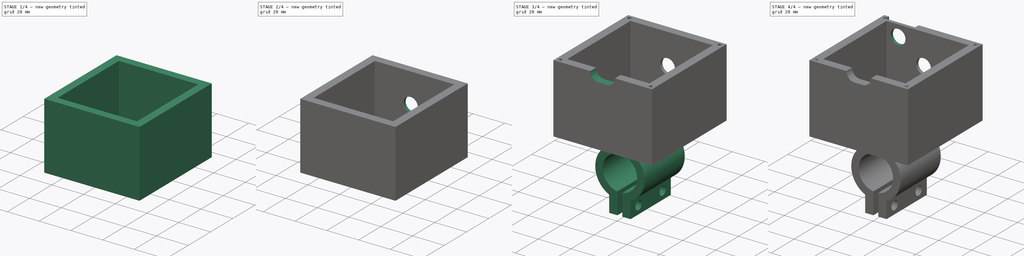
[diagram: build sequence overview — one tinted view per stage of 4, left to right]
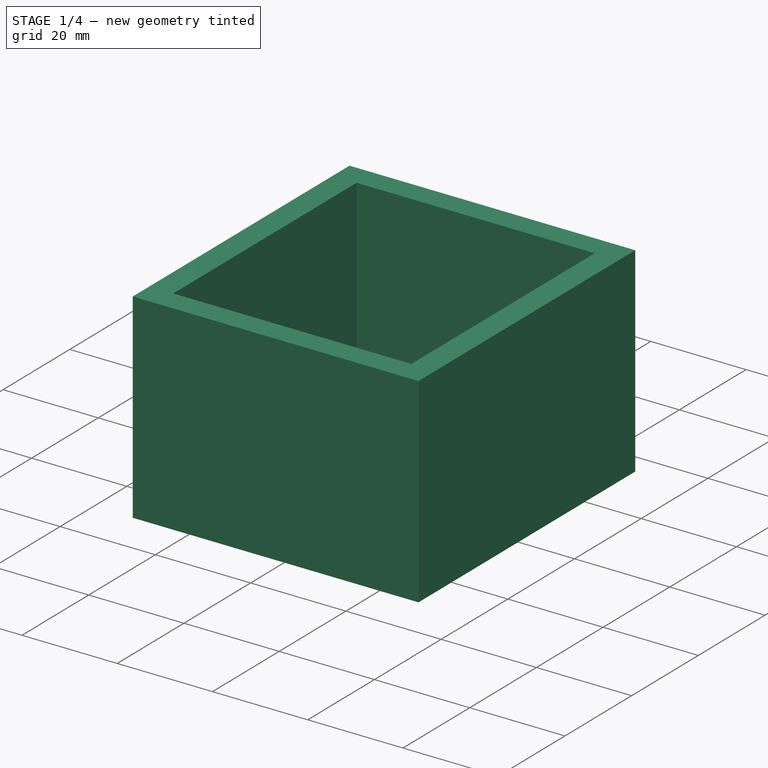
[diagram: stage 1 of 4 — iso view after this stage's code; geometry added in this stage tinted green]
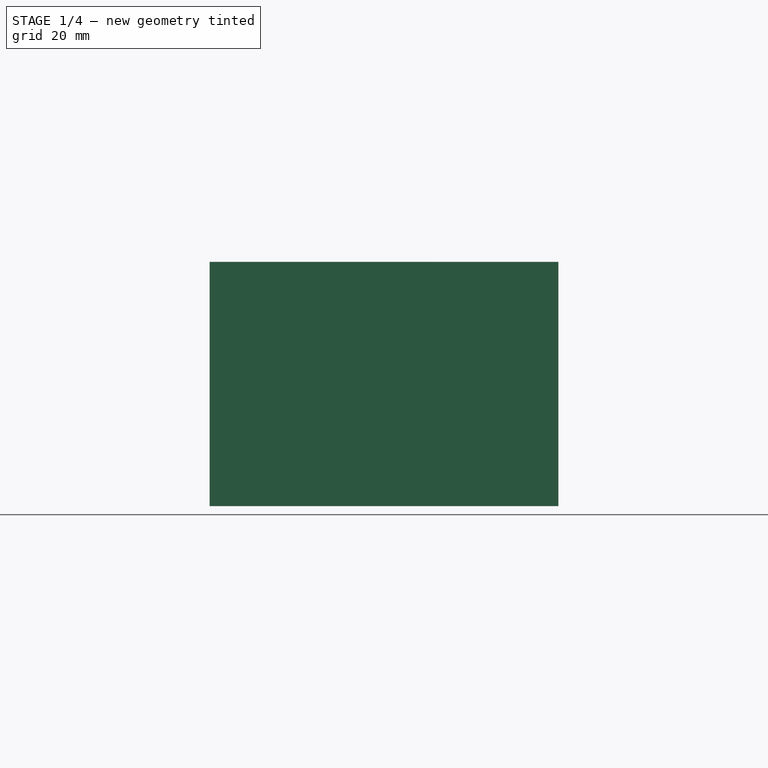
[diagram: stage 1 of 4 — front view after this stage's code; geometry added in this stage tinted green]
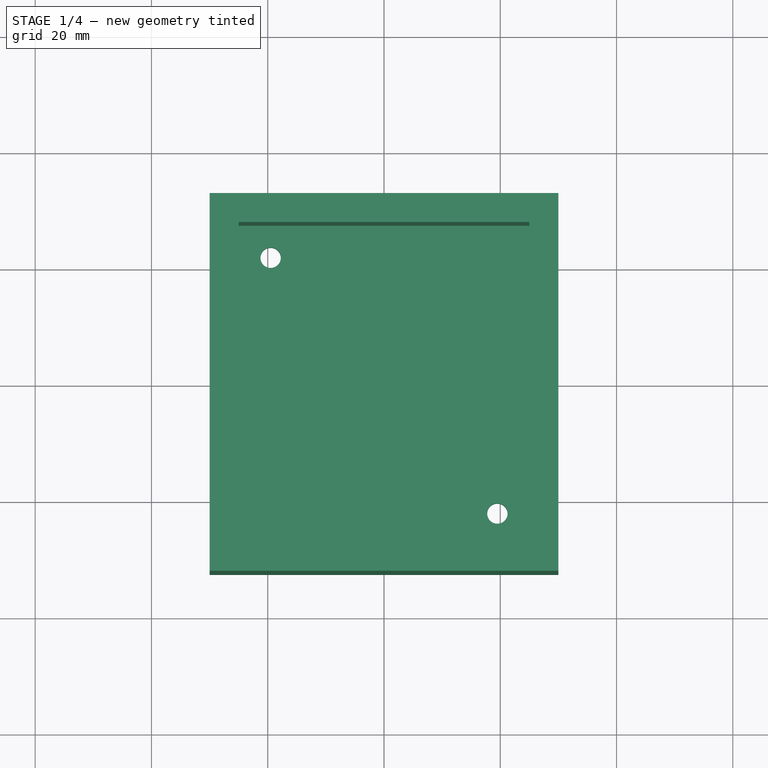
[diagram: stage 1 of 4 — top view after this stage's code; geometry added in this stage tinted green]
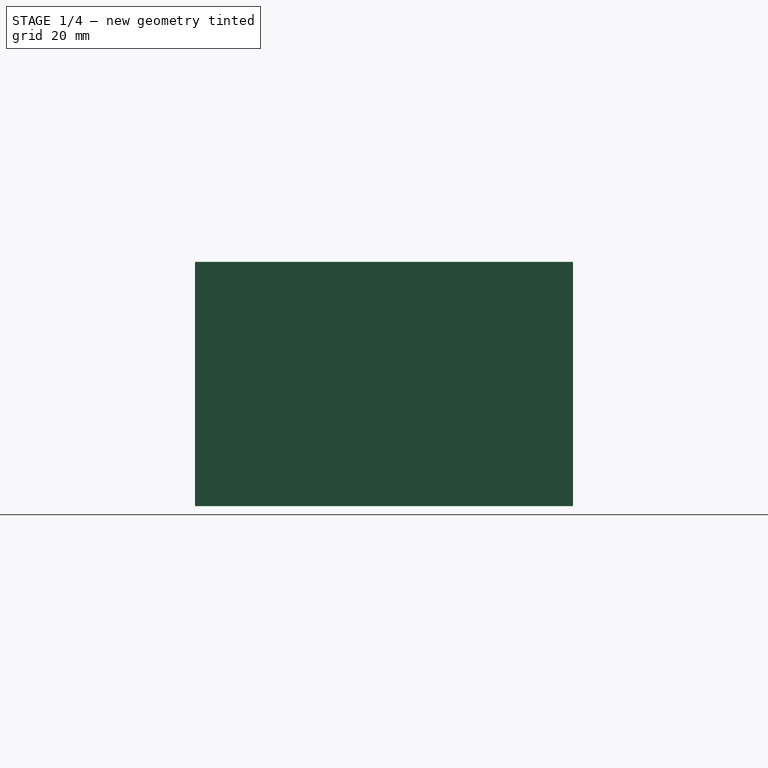
[diagram: stage 1 of 4 — right view after this stage's code; geometry added in this stage tinted green]
FCSTD DOCUMENT  (FreeCAD 0.19R)
Label: box
License: All rights reserved
LicenseURL: http://en.wikipedia.org/wiki/All_rights_reserved
objects: Sketcher::SketchObject×13, PartDesign::Pocket×10, PartDesign::CoordinateSystem×4, PartDesign::Pad×3, PartDesign::Plane×1, PartDesign::Body×1
note: 45 computed .brp shape members not serialized (recipe doc carries the construction recipe); baked Part::Feature solids carry a one-line shape summary decoded from their .brp

FEATURE [Sketcher::SketchObject] Sketch
  FullyConstrained = true
  MapMode = 5
  Support = -> [XY_Plane]
  sketch-geometry (4):
    g0: LineSegment StartX=-30 StartY=32.5 StartZ=0 EndX=30 EndY=32.5 EndZ=0
    g1: LineSegment StartX=30 StartY=32.5 StartZ=0 EndX=30 EndY=-32.5 EndZ=0
    g2: LineSegment StartX=30 StartY=-32.5 StartZ=0 EndX=-30 EndY=-32.5 EndZ=0
    g3: LineSegment StartX=-30 StartY=-32.5 StartZ=0 EndX=-30 EndY=32.5 EndZ=0
  constraints (10):
    c: Coincident(g0,g1)
    c: Coincident(g1,g2)
    c: Coincident(g2,g3)
    c: Coincident(g3,g0)
    c: Horizontal(g0)
    c: Vertical(g3)
    c: DistanceX(g0,g0) = 60
    c: DistanceY(g1,g1) = 65
    c: Symmetric(g1,g0,g-1)
    c: Symmetric(g2,g1,g-2)
FEATURE [PartDesign::Pad] Pad
  Direction = (1,1,1)
  Length = 42
  Length2 = 100
  Profile = -> Sketch
  Type = 0
FEATURE [Sketcher::SketchObject] Sketch001
  ExternalGeometry = -> [Pad]
  FullyConstrained = true
  MapMode = 5
  Placement = pos=(0,0,42) rot=(0,0,1;0rad)
  Support = -> [Pad]
  sketch-geometry (4):
    g0: LineSegment StartX=-25 StartY=27.5 StartZ=0 EndX=25 EndY=27.5 EndZ=0
    g1: LineSegment StartX=25 StartY=27.5 StartZ=0 EndX=25 EndY=-27.5 EndZ=0
    g2: LineSegment StartX=25 StartY=-27.5 StartZ=0 EndX=-25 EndY=-27.5 EndZ=0
    g3: LineSegment StartX=-25 StartY=-27.5 StartZ=0 EndX=-25 EndY=27.5 EndZ=0
  constraints (12):
    c: Coincident(g0,g1)
    c: Coincident(g1,g2)
    c: Coincident(g2,g3)
    c: Coincident(g3,g0)
    c: Horizontal(g0)
    c: Horizontal(g2)
    c: Vertical(g1)
    c: Vertical(g3)
    c: DistanceX(g1,g-4) = 5
    c: DistanceY(g-4,g1) = 5
    c: DistanceY(g0,g-4) = 5
    c: DistanceX(g-3,g2) = 5
FEATURE [PartDesign::Pocket] Pocket
  BaseFeature = -> Pad
  Length = 37
  Length2 = 100
  Profile = -> Sketch001
  Type = 0
FEATURE [PartDesign::CoordinateSystem] LCS_1
  AttacherType = Attacher::AttachEngine3D
  MapMode = 5
  Placement = pos=(0,0,0) rot=(1,0,0;3.14159rad)
  Support = -> [Pocket]
FEATURE [Sketcher::SketchObject] Sketch002
  FullyConstrained = true
  MapMode = 5
  Placement = pos=(0,0,0) rot=(1,0,0;3.14159rad)
  Support = -> [Pocket]
  sketch-geometry (2):
    g0: Circle CenterX=-19.5 CenterY=-22 CenterZ=0 NormalX=0 NormalY=0 NormalZ=1 AngleXU=0 Radius=1.75
    g1: Circle CenterX=19.5 CenterY=22 CenterZ=0 NormalX=0 NormalY=0 NormalZ=1 AngleXU=0 Radius=1.75
  constraints (6):
    c: Equal(g1,g0)
    c: Diameter(g1) = 3.5
    c: DistanceX(g0,g1) = 39
    c: DistanceY(g0,g1) = 44
    c: DistanceY(g0,g-1) = 22
    c: DistanceX(g-1,g1) = 19.5
FEATURE [PartDesign::Pocket] Pocket001
  BaseFeature = -> Pocket
  Length = 5
  Length2 = 100
  Profile = -> Sketch002
  Type = 0
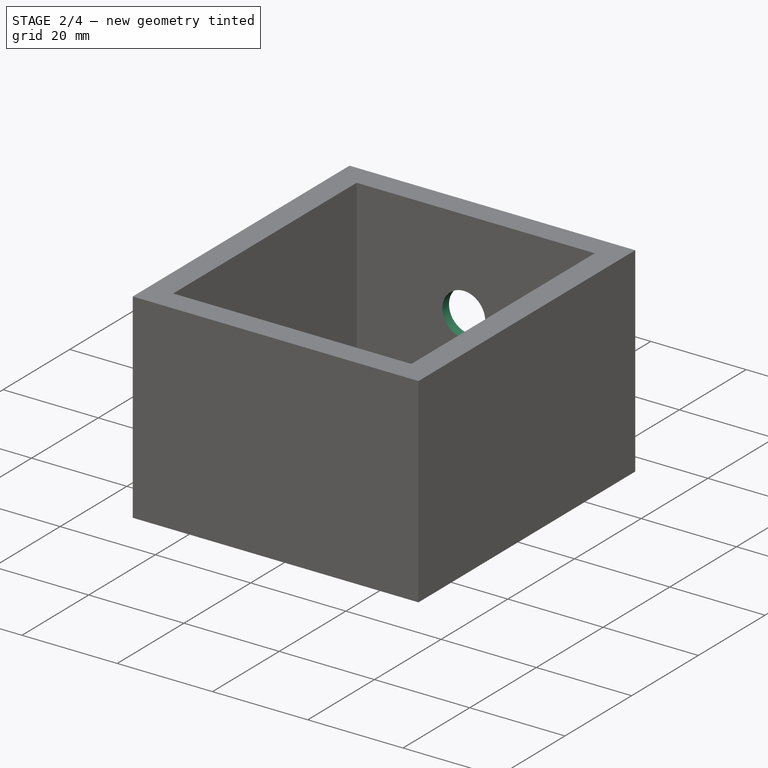
[diagram: stage 2 of 4 — iso view after this stage's code; geometry added in this stage tinted green]
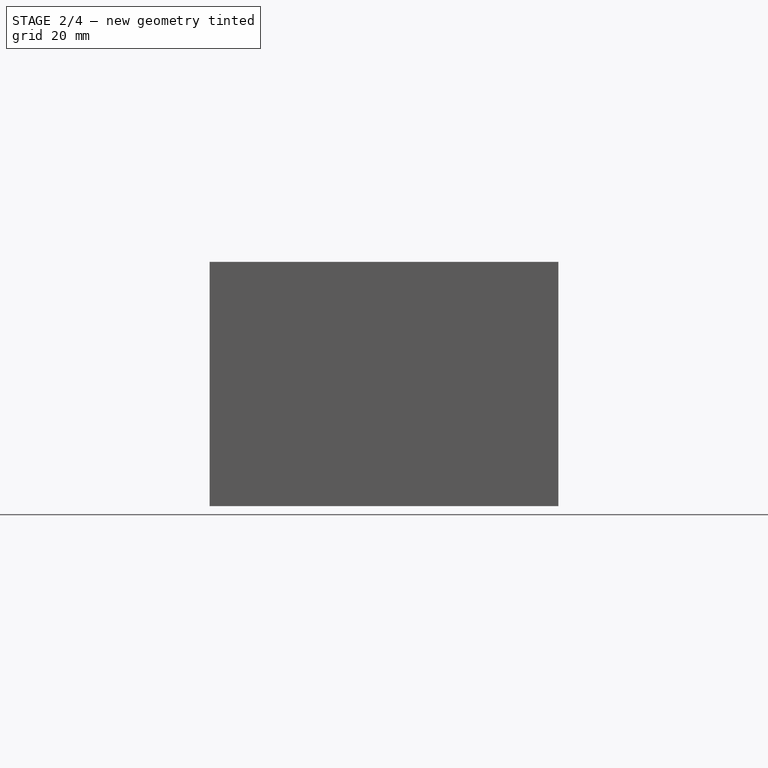
[diagram: stage 2 of 4 — front view after this stage's code; geometry added in this stage tinted green]
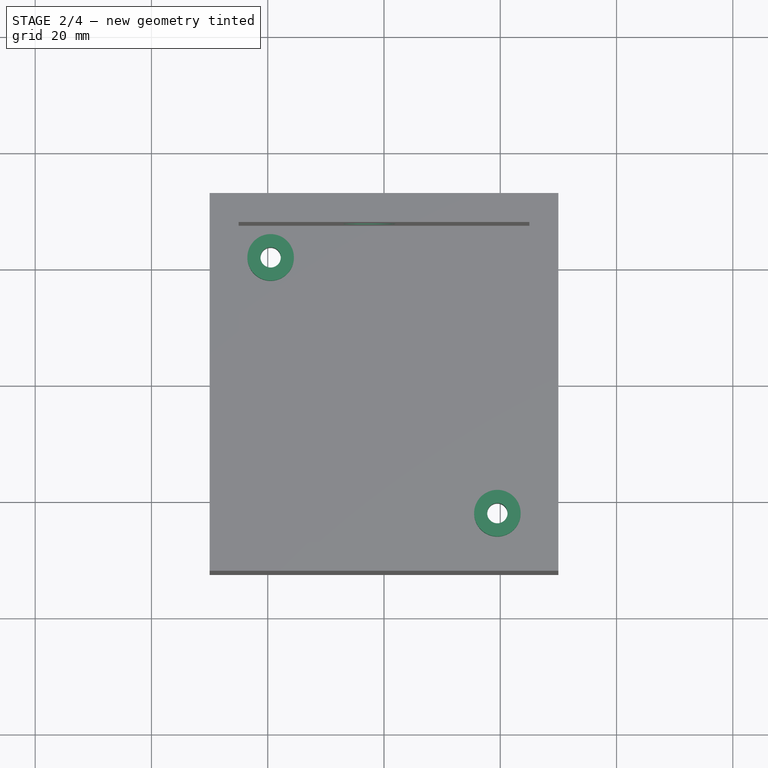
[diagram: stage 2 of 4 — top view after this stage's code; geometry added in this stage tinted green]
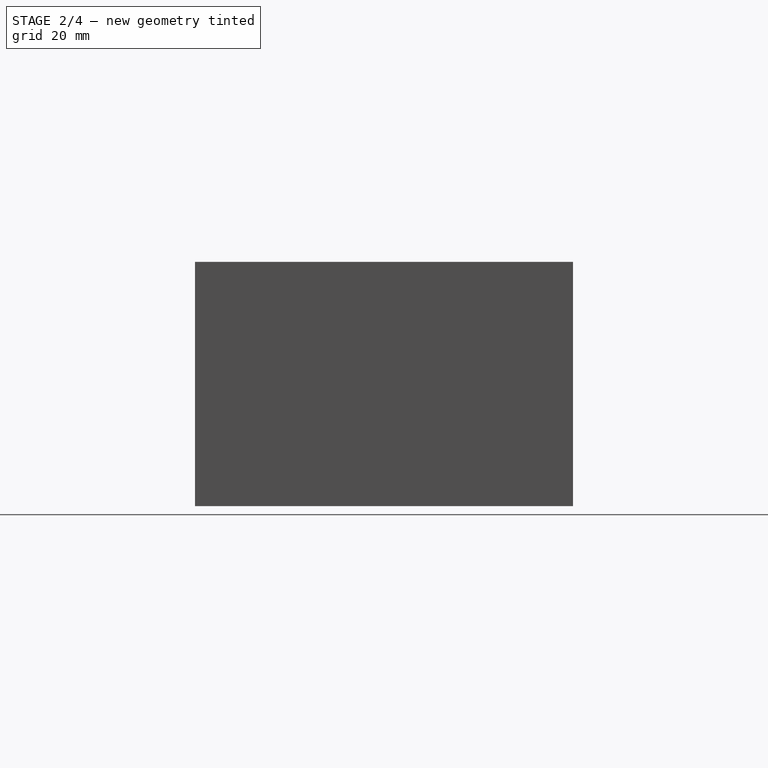
[diagram: stage 2 of 4 — right view after this stage's code; geometry added in this stage tinted green]
FEATURE [Sketcher::SketchObject] Sketch003
  ExternalGeometry = -> [Pocket001]
  FullyConstrained = true
  MapMode = 5
  Placement = pos=(0,0,5) rot=(0,0,1;0rad)
  Support = -> [Pocket001]
  sketch-geometry (4):
    g0: Circle CenterX=-19.5 CenterY=22 CenterZ=0 NormalX=0 NormalY=0 NormalZ=1 AngleXU=0 Radius=4
    g1: Circle CenterX=19.5 CenterY=-22 CenterZ=0 NormalX=0 NormalY=0 NormalZ=1 AngleXU=0 Radius=4
    g2: Circle CenterX=19.5 CenterY=-22 CenterZ=0 NormalX=0 NormalY=0 NormalZ=1 AngleXU=0 Radius=1.75
    g3: Circle CenterX=-19.5 CenterY=22 CenterZ=0 NormalX=0 NormalY=0 NormalZ=1 AngleXU=0 Radius=1.75
  constraints (8):
    c: Coincident(g0,g-3)
    c: Coincident(g1,g-4)
    c: Equal(g1,g0)
    c: Diameter(g1) = 8
    c: Coincident(g2,g1)
    c: Coincident(g3,g0)
    c: Equal(g2,g3)
    c: Diameter(g2) = 3.5
FEATURE [PartDesign::Pad] Pad001
  BaseFeature = -> Pocket001
  Direction = (1,1,1)
  Length = 4
  Length2 = 100
  Profile = -> Sketch003
  Type = 0
FEATURE [PartDesign::CoordinateSystem] LCS_2
  AttacherType = Attacher::AttachEngine3D
  MapMode = 11
  Placement = pos=(-19.5,22,9) rot=(0,0,1;1.5708rad)
  Support = -> [Pad001]
FEATURE [PartDesign::CoordinateSystem] LCS_3
  AttacherType = Attacher::AttachEngine3D
  MapMode = 11
  Placement = pos=(19.5,-22,9) rot=(0,0,1;1.5708rad)
  Support = -> [Pad001]
FEATURE [Sketcher::SketchObject] Sketch004
  ExternalGeometry = -> [Pad001]
  FullyConstrained = true
  MapMode = 5
  Placement = pos=(0,32.5,0) rot=(0,0.707107,0.707107;3.14159rad)
  Support = -> [Pad001]
  sketch-geometry (1):
    g0: Circle CenterX=2.5 CenterY=23 CenterZ=0 NormalX=0 NormalY=0 NormalZ=1 AngleXU=0 Radius=4.5
  constraints (3):
    c: Diameter(g0) = 9
    c: DistanceY(g-1,g0) = 23
    c: DistanceX(g-3,g0) = 32.5
FEATURE [PartDesign::Pocket] Pocket002
  BaseFeature = -> Pad001
  Length = 5
  Length2 = 100
  Profile = -> Sketch004
  Type = 0
FEATURE [Sketcher::SketchObject] Sketch005
  ExternalGeometry = -> [Pocket002]
  FullyConstrained = true
  MapMode = 5
  Placement = pos=(0,32.5,0) rot=(0,0.707107,0.707107;3.14159rad)
  Support = -> [Pocket002]
  sketch-geometry (1):
    g0: Circle CenterX=2.5 CenterY=23 CenterZ=0 NormalX=0 NormalY=0 NormalZ=1 AngleXU=0 Radius=8.5
  constraints (2):
    c: Coincident(g0,g-3)
    c: Diameter(g0) = 17
FEATURE [PartDesign::Pocket] Pocket003
  BaseFeature = -> Pocket002
  Length = 3
  Length2 = 100
  Profile = -> Sketch005
  Type = 0
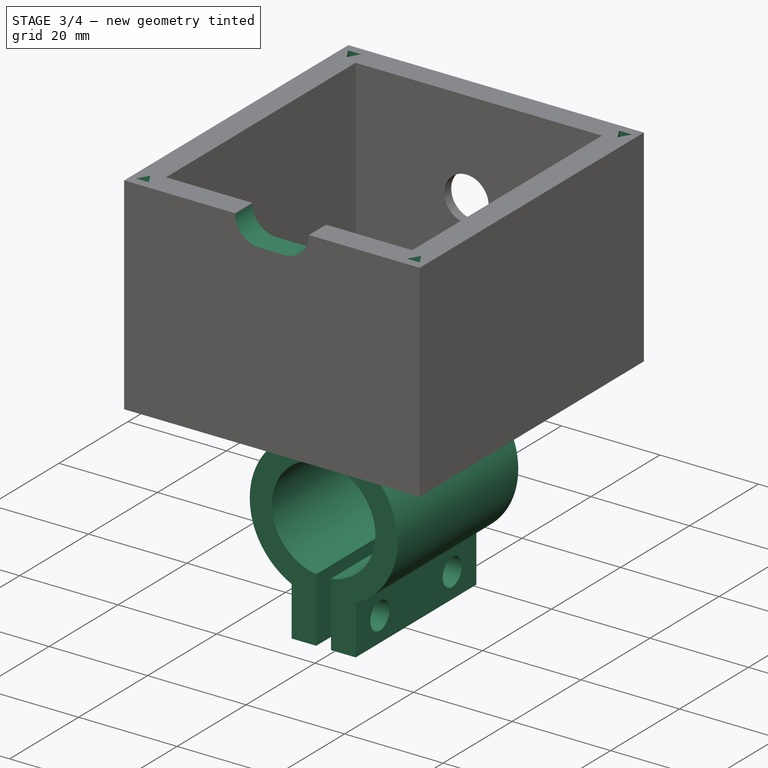
[diagram: stage 3 of 4 — iso view after this stage's code; geometry added in this stage tinted green]
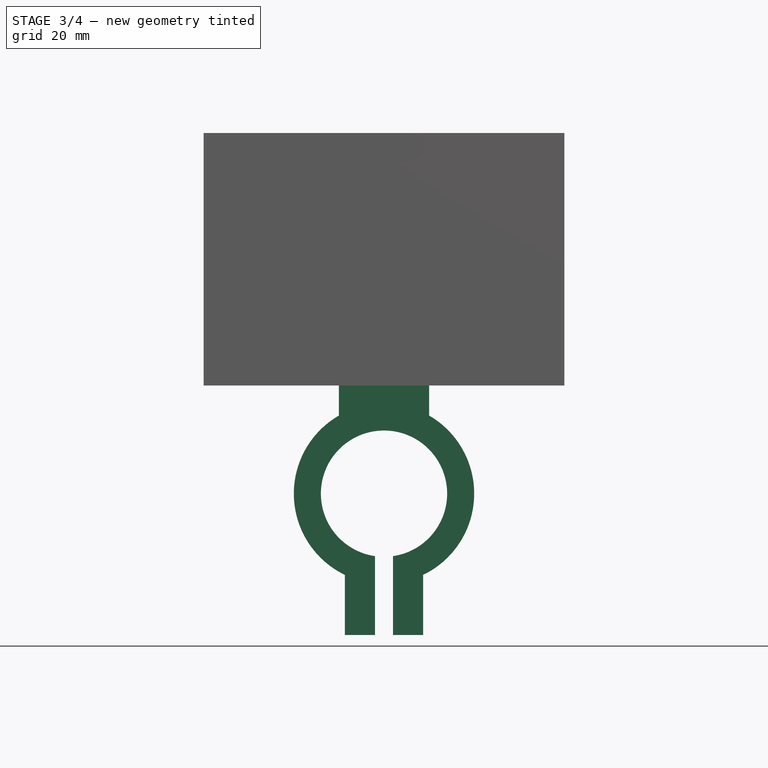
[diagram: stage 3 of 4 — front view after this stage's code; geometry added in this stage tinted green]
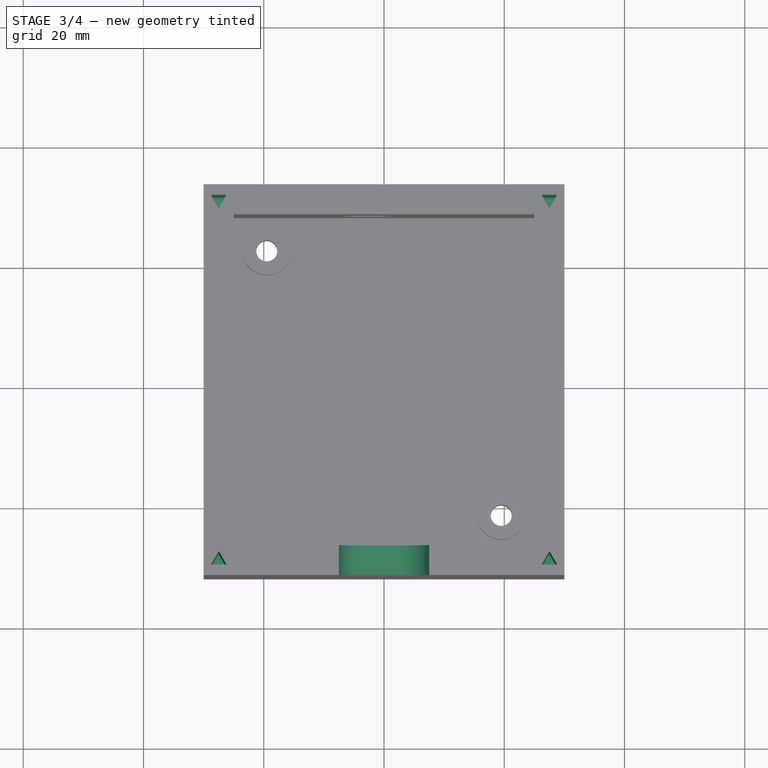
[diagram: stage 3 of 4 — top view after this stage's code; geometry added in this stage tinted green]
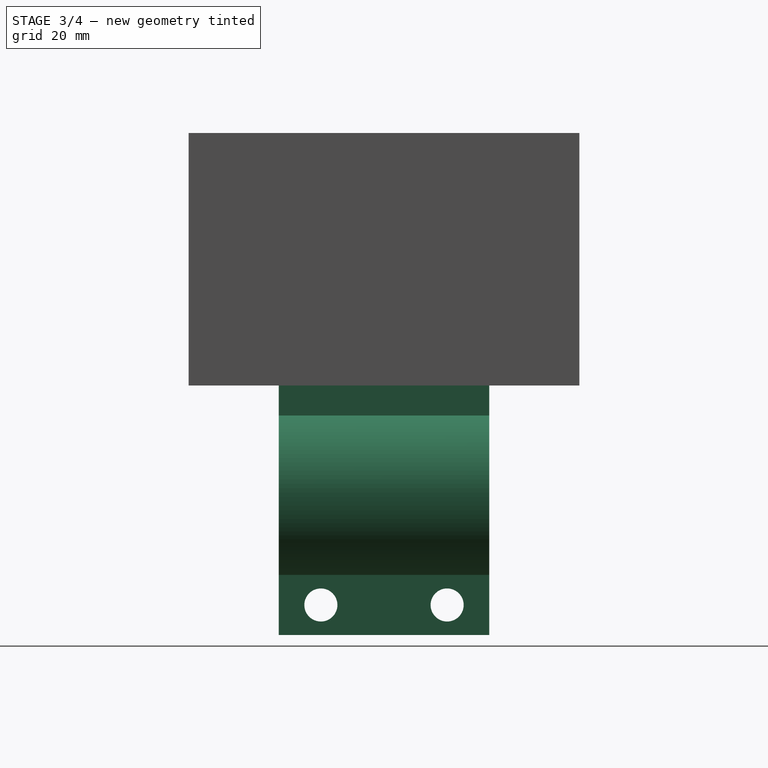
[diagram: stage 3 of 4 — right view after this stage's code; geometry added in this stage tinted green]
FEATURE [Sketcher::SketchObject] Sketch006
  ExternalGeometry = -> [Pocket003]
  FullyConstrained = true
  MapMode = 5
  Placement = pos=(0,0,42) rot=(0,0,1;0rad)
  Support = -> [Pocket003]
  sketch-geometry (16):
    g0: LineSegment StartX=-27.5 StartY=28.5 StartZ=0 EndX=-26.201 EndY=30.75 EndZ=0
    g1: LineSegment StartX=-26.201 StartY=30.75 StartZ=0 EndX=-28.799 EndY=30.75 EndZ=0
    g2: LineSegment StartX=-28.799 StartY=30.75 StartZ=0 EndX=-27.5 EndY=28.5 EndZ=0
    g3: Circle CenterX=-27.5 CenterY=30 CenterZ=0 NormalX=0 NormalY=0 NormalZ=1 AngleXU=0 Radius=1.5
    g4: LineSegment StartX=27.5 StartY=28.5 StartZ=0 EndX=28.799 EndY=30.75 EndZ=0
    g5: LineSegment StartX=28.799 StartY=30.75 StartZ=0 EndX=26.201 EndY=30.75 EndZ=0
    g6: LineSegment StartX=26.201 StartY=30.75 StartZ=0 EndX=27.5 EndY=28.5 EndZ=0
    g7: Circle CenterX=27.5 CenterY=30 CenterZ=0 NormalX=0 NormalY=0 NormalZ=1 AngleXU=0 Radius=1.5
    g8: LineSegment StartX=28.799 StartY=-30.75 StartZ=0 EndX=27.5 EndY=-28.5 EndZ=0
    g9: LineSegment StartX=27.5 StartY=-28.5 StartZ=0 EndX=26.201 EndY=-30.75 EndZ=0
    g10: LineSegment StartX=26.201 StartY=-30.75 StartZ=0 EndX=28.799 EndY=-30.75 EndZ=0
    g11: Circle CenterX=27.5 CenterY=-30 CenterZ=0 NormalX=0 NormalY=0 NormalZ=1 AngleXU=0 Radius=1.5
    g12: LineSegment StartX=-26.201 StartY=-30.75 StartZ=0 EndX=-27.5 EndY=-28.5 EndZ=0
    g13: LineSegment StartX=-27.5 StartY=-28.5 StartZ=0 EndX=-28.799 EndY=-30.75 EndZ=0
    g14: LineSegment StartX=-28.799 StartY=-30.75 StartZ=0 EndX=-26.201 EndY=-30.75 EndZ=0
    g15: Circle CenterX=-27.5 CenterY=-30 CenterZ=0 NormalX=0 NormalY=0 NormalZ=1 AngleXU=0 Radius=1.5
  constraints (48):
    c: Coincident(g0,g1)
    c: Coincident(g1,g2)
    c: Coincident(g2,g0)
    c: Equal(g0,g1)
    c: Equal(g0,g2)
    c: PointOnObject(g0,g3)
    c: PointOnObject(g1,g3)
    c: PointOnObject(g2,g3)
    c: Coincident(g4,g5)
    c: Coincident(g5,g6)
    c: Coincident(g6,g4)
    c: Equal(g4,g5)
    c: Equal(g4,g6)
    c: PointOnObject(g4,g7)
    c: PointOnObject(g5,g7)
    c: PointOnObject(g6,g7)
    c: Coincident(g8,g9)
    c: Coincident(g9,g10)
    c: Coincident(g10,g8)
    c: Equal(g8,g9)
    c: Equal(g8,g10)
    c: PointOnObject(g8,g11)
    c: PointOnObject(g9,g11)
    c: PointOnObject(g10,g11)
    c: Coincident(g12,g13)
    c: Coincident(g13,g14)
    c: Coincident(g14,g12)
    c: Equal(g12,g13)
    c: Equal(g12,g14)
    c: PointOnObject(g12,g15)
    c: PointOnObject(g13,g15)
    c: PointOnObject(g14,g15)
    c: Equal(g11,g15)
    c: Equal(g15,g3)
    c: Equal(g3,g7)
    c: Diameter(g11) = 3
    c: Horizontal(g10)
    c: Horizontal(g14)
    c: Horizontal(g1)
    c: Horizontal(g5)
    c: DistanceX(g7,g-3) = 2.5
    c: DistanceY(g7,g-3) = 2.5
    c: DistanceX(g-3,g3) = 2.5
    c: DistanceY(g3,g-3) = 2.5
    c: DistanceX(g-4,g15) = 2.5
    c: DistanceY(g-4,g15) = 2.5
    c: DistanceY(g-4,g11) = 2.5
    c: DistanceX(g11,g-4) = 2.5
FEATURE [PartDesign::Pocket] Pocket004
  BaseFeature = -> Pocket003
  Length = 30
  Length2 = 100
  Profile = -> Sketch006
  Type = 0
FEATURE [PartDesign::CoordinateSystem] LCS_4
  AttacherType = Attacher::AttachEngine3D
  AttachmentOffset = pos=(2.5,0,-2.5) rot=(0,0,1;0rad)
  MapMode = 7
  Placement = pos=(-27.5,30,42) rot=(0.57735,-0.57735,-0.57735;2.0944rad)
  Support = -> [Pocket004]
FEATURE [Sketcher::SketchObject] Sketch007
  ExternalGeometry = -> [Pocket004]
  FullyConstrained = true
  MapMode = 5
  Placement = pos=(0,-32.5,0) rot=(1,0,0;1.5708rad)
  Support = -> [Pocket004]
  sketch-geometry (4):
    g0: LineSegment StartX=-7.5 StartY=42 StartZ=0 EndX=7.5 EndY=42 EndZ=0
    g1: LineSegment StartX=-2.5 StartY=37 StartZ=0 EndX=2.5 EndY=37 EndZ=0
    g2: ArcOfCircle CenterX=-2.5 CenterY=42 CenterZ=0 NormalX=0 NormalY=0 NormalZ=1 AngleXU=0 Radius=5 StartAngle=3.14159 EndAngle=4.71239
    g3: ArcOfCircle CenterX=2.5 CenterY=42 CenterZ=0 NormalX=0 NormalY=0 NormalZ=1 AngleXU=0 Radius=5 StartAngle=4.71239 EndAngle=6.28319
  constraints (12):
    c: PointOnObject(g0,g-3)
    c: PointOnObject(g2,g0)
    c: Coincident(g2,g1)
    c: Coincident(g2,g0)
    c: PointOnObject(g3,g0)
    c: Coincident(g3,g1)
    c: Coincident(g3,g0)
    c: Symmetric(g0,g0,g-2)
    c: Symmetric(g1,g1,g-2)
    c: DistanceX(g0,g0) = 15
    c: DistanceX(g1,g1) = 5
    c: DistanceY(g1,g0) = 5
FEATURE [PartDesign::Pocket] Pocket005
  BaseFeature = -> Pocket004
  Length = 5
  Length2 = 100
  Profile = -> Sketch007
  Type = 0
FEATURE [PartDesign::Plane] DatumPlane
  AttachmentOffset = pos=(0,0,0) rot=(-1,0,0;1.5708rad)
  Length = 74.157
  MapMode = 5
  Placement = pos=(0,0,0) rot=(1,0,0;1.5708rad)
  ResizeMode = 0
  Support = -> [Pocket005]
  Width = 97.6659
FEATURE [Sketcher::SketchObject] Sketch008
  ExternalGeometry = -> [Pocket005]
  FullyConstrained = true
  MapMode = 5
  Placement = pos=(0,0,0) rot=(1,0,0;1.5708rad)
  Support = -> [DatumPlane]
  sketch-geometry (12):
    g0: LineSegment StartX=-7.5 StartY=7.2e-15 StartZ=0 EndX=7.5 EndY=7.2e-15 EndZ=0
    g1: LineSegment StartX=7.5 StartY=7.2e-15 StartZ=0 EndX=7.5 EndY=-5 EndZ=0
    g2: LineSegment StartX=-7.5 StartY=7.2e-15 StartZ=0 EndX=-7.5 EndY=-5 EndZ=0
    g3: ArcOfCircle CenterX=0 CenterY=-17.9904 CenterZ=0 NormalX=0 NormalY=0 NormalZ=1 AngleXU=0 Radius=15 StartAngle=5.16058 EndAngle=7.33038
    g4: ArcOfCircle CenterX=0 CenterY=-17.9904 CenterZ=0 NormalX=0 NormalY=0 NormalZ=1 AngleXU=0 Radius=15 StartAngle=2.0944 EndAngle=4.2642
    g5: LineSegment StartX=-6.5 StartY=-31.5089 StartZ=0 EndX=-6.5 EndY=-41.5089 EndZ=0
    g6: LineSegment StartX=-6.5 StartY=-41.5089 StartZ=0 EndX=-1.5 EndY=-41.5089 EndZ=0
    g7: LineSegment StartX=-1.5 StartY=-41.5089 StartZ=0 EndX=-1.5 EndY=-28.3827 EndZ=0
    g8: LineSegment StartX=6.5 StartY=-31.5089 StartZ=0 EndX=6.5 EndY=-41.5089 EndZ=0
    g9: LineSegment StartX=6.5 StartY=-41.5089 StartZ=0 EndX=1.5 EndY=-41.5089 EndZ=0
    g10: LineSegment StartX=1.5 StartY=-41.5089 StartZ=0 EndX=1.5 EndY=-28.3827 EndZ=0
    g11: ArcOfCircle CenterX=0 CenterY=-17.9904 CenterZ=0 NormalX=0 NormalY=0 NormalZ=1 AngleXU=0 Radius=10.5 StartAngle=4.85574 EndAngle=10.8522
  constraints (35):
    c: PointOnObject(g0,g-3)
    c: Coincident(g0,g1)
    c: Vertical(g1)
    c: Coincident(g2,g0)
    c: Vertical(g2)
    c: PointOnObject(g3,g-2)
    c: Coincident(g3,g1)
    c: Coincident(g4,g3)
    c: Coincident(g4,g2)
    c: DistanceX(g0,g0) = 15
    c: Symmetric(g0,g0,g-2)
    c: DistanceY(g1,g1) = 5
    c: Symmetric(g3,g4,g-2)
    c: Diameter(g3) = 30
    c: Coincident(g5,g4)
    c: Vertical(g5)
    c: Coincident(g6,g5)
    c: Horizontal(g6)
    c: Coincident(g7,g6)
    c: Vertical(g7)
    c: Coincident(g8,g3)
    c: Vertical(g8)
    c: Coincident(g9,g8)
    c: Horizontal(g9)
    c: Coincident(g10,g9)
    c: Vertical(g10)
    c: DistanceX(g6,g6) = 5
    c: DistanceX(g5,g8) = 13
    c: Equal(g9,g6)
    c: DistanceY(g8,g8) = 10
    c: Equal(g5,g8)
    c: Coincident(g11,g3)
    c: Coincident(g11,g10)
    c: Coincident(g11,g7)
    c: Diameter(g11) = 21
FEATURE [PartDesign::Pad] Pad002
  BaseFeature = -> Pocket005
  Direction = (1,1,1)
  Length = 35
  Length2 = 100
  Midplane = true
  Profile = -> Sketch008
  Type = 0
FEATURE [Sketcher::SketchObject] Sketch009
  ExternalGeometry = -> [Pad002]
  FullyConstrained = true
  MapMode = 5
  Placement = pos=(6.5,0,0) rot=(0.57735,0.57735,0.57735;2.0944rad)
  Support = -> [Pad002]
  sketch-geometry (2):
    g0: Circle CenterX=-10.5 CenterY=-36.5089 CenterZ=0 NormalX=0 NormalY=0 NormalZ=1 AngleXU=0 Radius=2.75
    g1: Circle CenterX=10.5 CenterY=-36.5089 CenterZ=0 NormalX=0 NormalY=0 NormalZ=1 AngleXU=0 Radius=2.75
  constraints (5):
    c: Equal(g0,g1)
    c: Diameter(g1) = 5.5
    c: Symmetric(g1,g0,g-2)
    c: DistanceY(g-3,g1) = 5
    c: DistanceX(g1,g-3) = 7
FEATURE [PartDesign::Pocket] Pocket006
  BaseFeature = -> Pad002
  Length = 5
  Length2 = 100
  Profile = -> Sketch009
  Type = 1
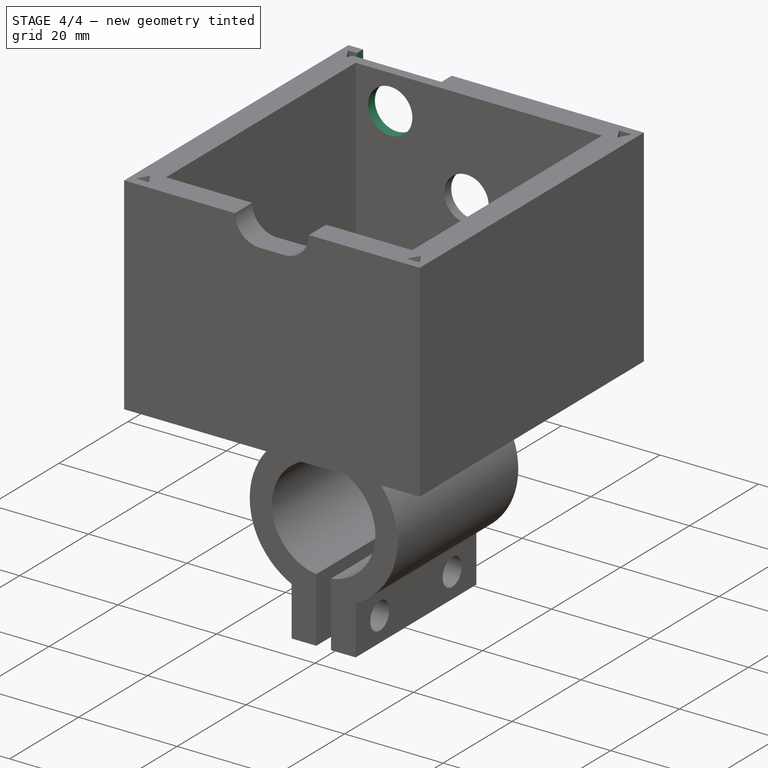
[diagram: stage 4 of 4 — iso view after this stage's code; geometry added in this stage tinted green]
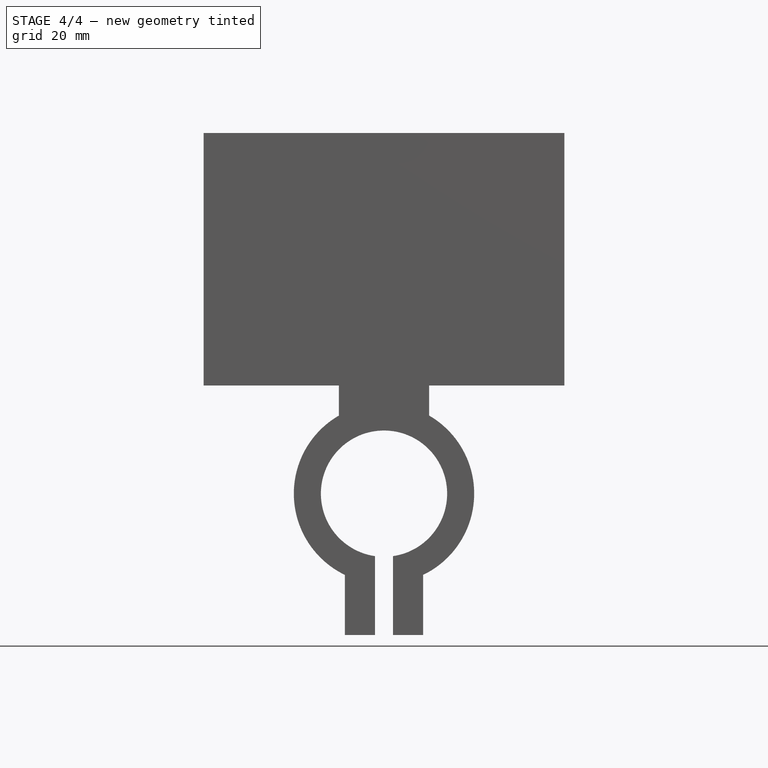
[diagram: stage 4 of 4 — front view after this stage's code; geometry added in this stage tinted green]
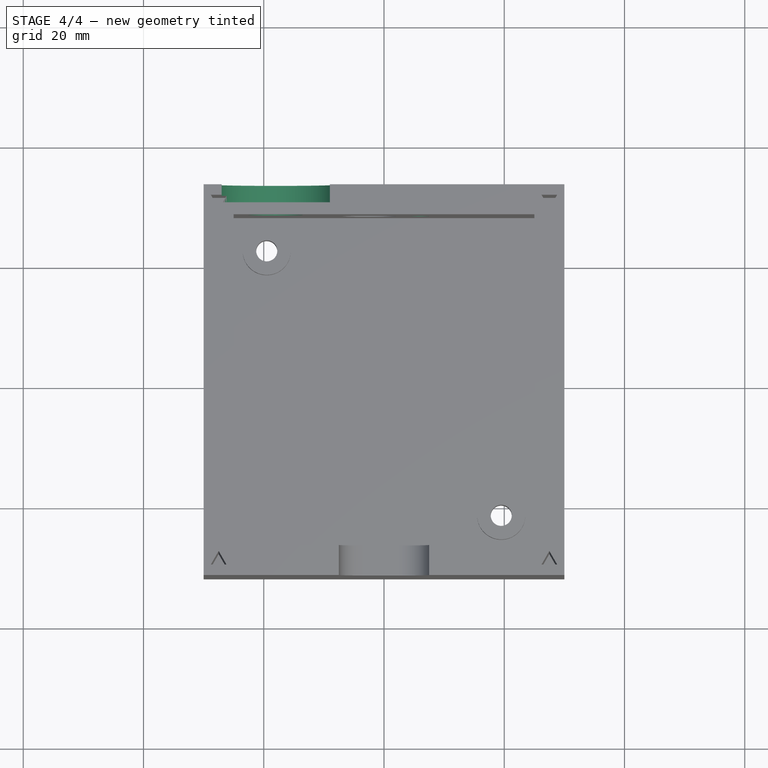
[diagram: stage 4 of 4 — top view after this stage's code; geometry added in this stage tinted green]
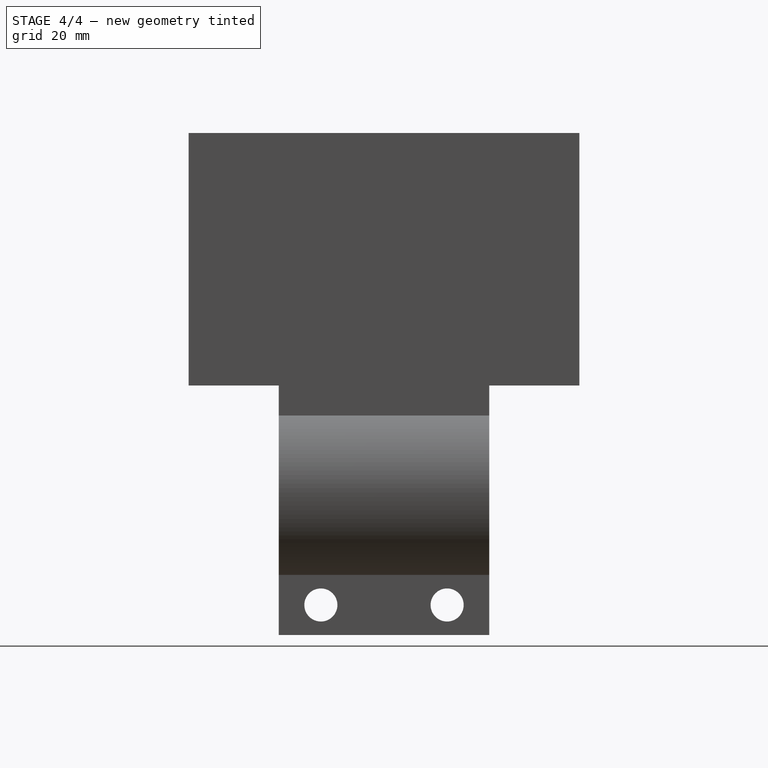
[diagram: stage 4 of 4 — right view after this stage's code; geometry added in this stage tinted green]
FEATURE [Sketcher::SketchObject] Sketch010
  FullyConstrained = true
  MapMode = 5
  Placement = pos=(0,32.5,0) rot=(0,0.707107,0.707107;3.14159rad)
  Support = -> [Pocket006]
  sketch-geometry (1):
    g0: Circle CenterX=18 CenterY=35 CenterZ=0 NormalX=0 NormalY=0 NormalZ=1 AngleXU=0 Radius=4.5
  constraints (3):
    c: Diameter(g0) = 9
    c: DistanceY(g-1,g0) = 35
    c: DistanceX(g-1,g0) = 18
FEATURE [PartDesign::Pocket] Pocket007
  BaseFeature = -> Pocket006
  Length = 5
  Length2 = 100
  Profile = -> Sketch010
  Type = 0
FEATURE [Sketcher::SketchObject] Sketch011
  ExternalGeometry = -> [Pocket007]
  FullyConstrained = true
  MapMode = 5
  Placement = pos=(0,32.5,0) rot=(0,0.707107,0.707107;3.14159rad)
  Support = -> [Pocket007]
  sketch-geometry (4):
    g0: LineSegment StartX=9 StartY=42 StartZ=0 EndX=27 EndY=42 EndZ=0
    g1: LineSegment StartX=27 StartY=42 StartZ=0 EndX=27 EndY=32 EndZ=0
    g2: LineSegment StartX=9 StartY=42 StartZ=0 EndX=9 EndY=32 EndZ=0
    g3: ArcOfCircle CenterX=18 CenterY=36.3589 CenterZ=0 NormalX=0 NormalY=0 NormalZ=1 AngleXU=0 Radius=10 StartAngle=3.59262 EndAngle=5.83216
  constraints (13):
    c: PointOnObject(g0,g-3)
    c: PointOnObject(g0,g-3)
    c: Coincident(g1,g0)
    c: Vertical(g1)
    c: Coincident(g2,g0)
    c: Vertical(g2)
    c: Coincident(g3,g2)
    c: Coincident(g3,g1)
    c: DistanceX(g0,g0) = 18
    c: Equal(g2,g1)
    c: DistanceX(g-1,g3) = 18
    c: DistanceY(g1,g1) = 10
    c: Radius(g3) = 10
FEATURE [PartDesign::Pocket] Pocket008
  BaseFeature = -> Pocket007
  Length = 3
  Length2 = 100
  Profile = -> Sketch011
  Type = 0
FEATURE [Sketcher::SketchObject] Sketch012
  ExternalGeometry = -> [Pocket008]
  FullyConstrained = true
  MapMode = 5
  Placement = pos=(0,27.5,0) rot=(1,0,0;1.5708rad)
  Support = -> [Pocket008]
  sketch-geometry (1):
    g0: Circle CenterX=6 CenterY=23 CenterZ=0 NormalX=0 NormalY=0 NormalZ=1 AngleXU=0 Radius=1.5
  constraints (3):
    c: DistanceX(g-3,g0) = 8.5
    c: Diameter(g0) = 3
    c: DistanceY(g-1,g0) = 23
FEATURE [PartDesign::Pocket] Pocket009
  BaseFeature = -> Pocket008
  Length = 5
  Length2 = 100
  Profile = -> Sketch012
  Type = 0
FEATURE [PartDesign::Body] Body
  Group = -> [Sketch,Pad,Sketch001,Pocket,LCS_1,Sketch002,Pocket001,Sketch003,Pad001,LCS_2,LCS_3,Sketch004,Pocket002,Sketch005,Pocket003,Sketch006,Pocket004,LCS_4,Sketch007,Pocket005,DatumPlane,Sketch008,Pad002,Sketch009,Pocket006,Sketch010,Pocket007,Sketch011,Pocket008,Sketch012,Pocket009]
  Origin = -> Origin
  Tip = -> Pocket009
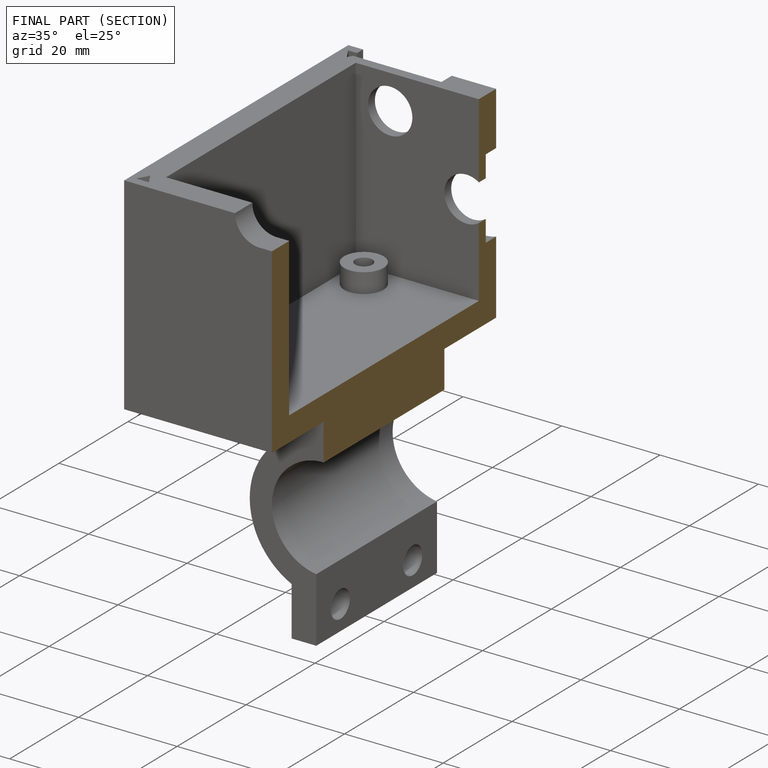
[diagram: finished part — half-section view (interior)]
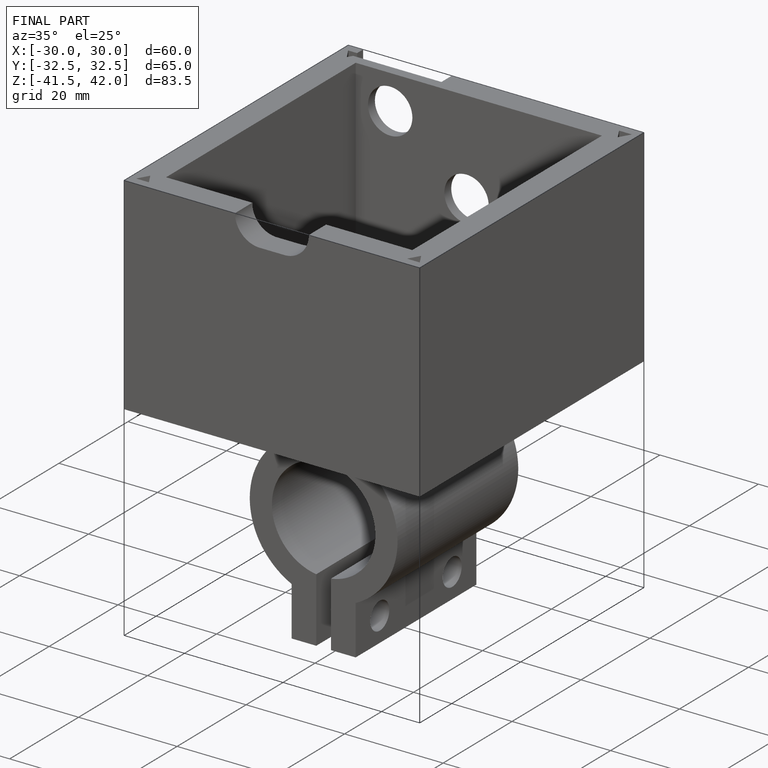
[diagram: finished part — iso view with bounding-box wireframe]
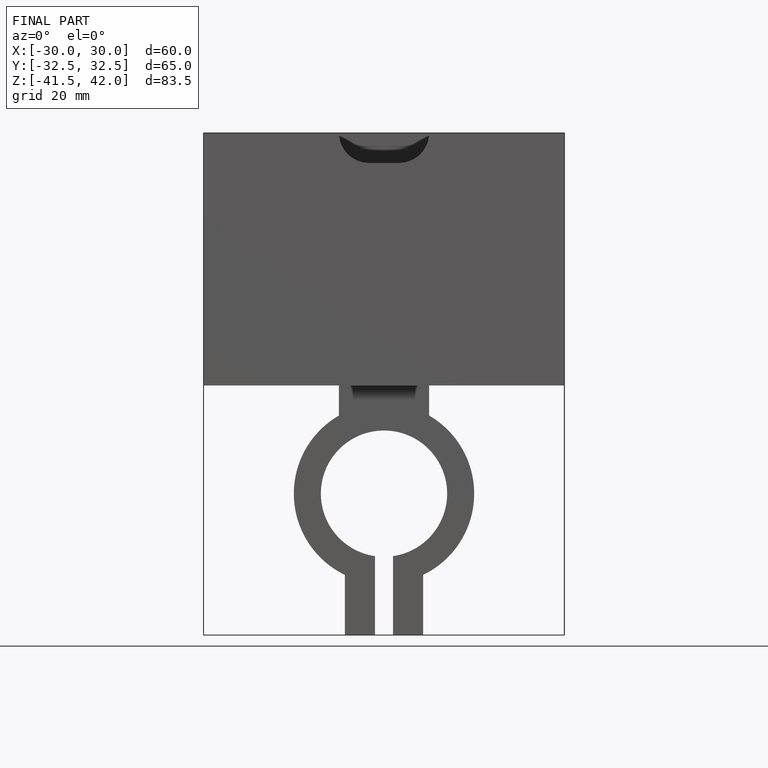
[diagram: finished part — front view with bounding-box wireframe]
